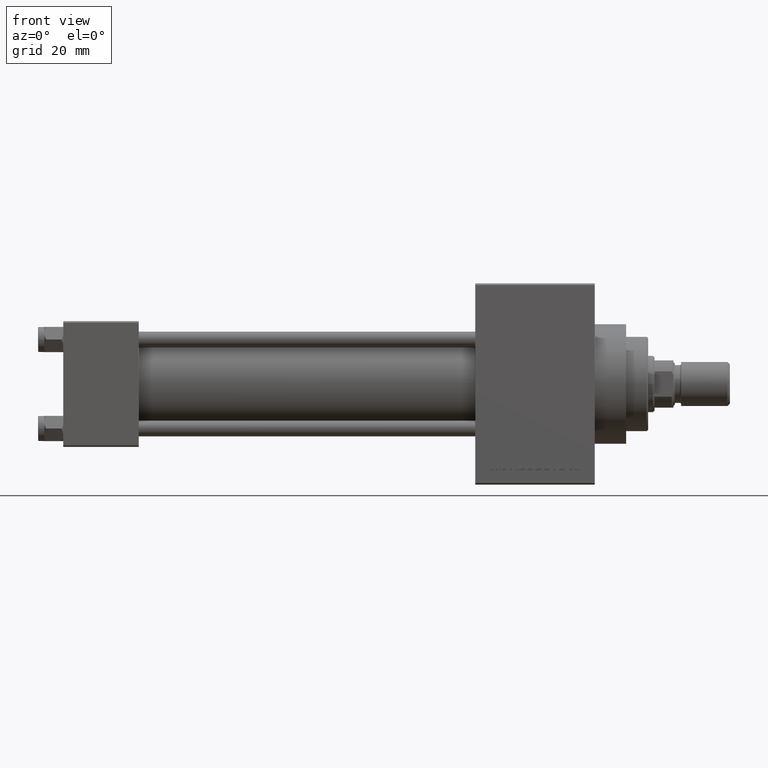
[diagram: clean part render]
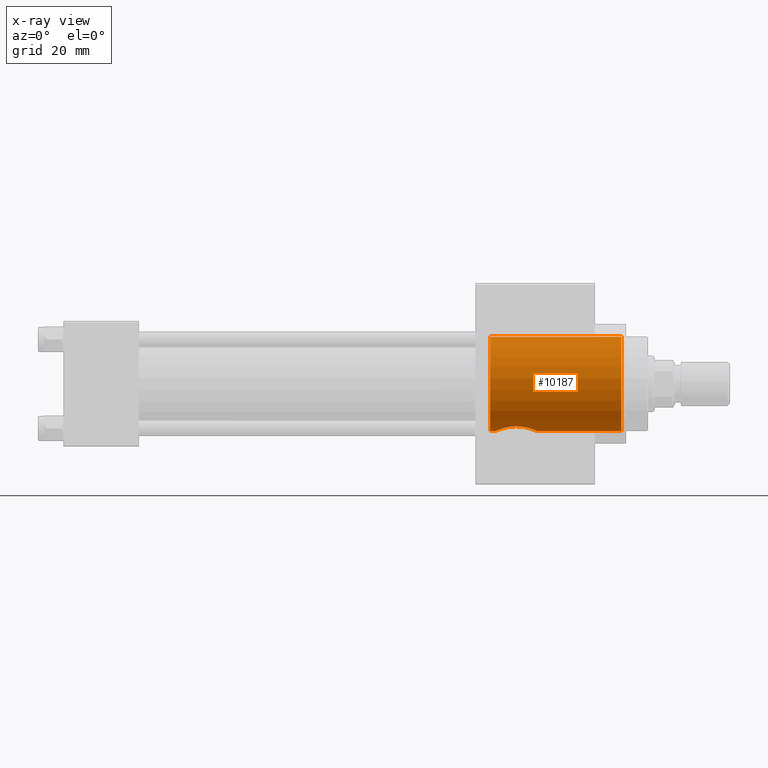
[diagram: x-ray — body ghosted, one internal face saturated and labeled with its STEP entity id]
A machine part, front view, then the same camera in x-ray: the body is ghosted and one INTERNAL B-rep face — a face not visible from any outside direction — is saturated and labeled: STEP entity #10187.
In plain terms, the highlighted cylindrical surface (partial cylindrical patch) has radius 15 mm, axis along (1, 0, 0).
Its self-contained STEP definition (entity closure, byte-faithful):
#220 = CARTESIAN_POINT ( 'NONE',  ( 148.9437061587972266, -4.347595077437862443, -14.35715008390740266 ) ) ;
#318 = CARTESIAN_POINT ( 'NONE',  ( 135.7400000000000375, 0.000000000000000000, -15.00000000000000000 ) ) ;
#692 = CARTESIAN_POINT ( 'NONE',  ( 148.0189860575794683, -5.227305174359007545, -14.06200234790978421 ) ) ;
#928 = CARTESIAN_POINT ( 'NONE',  ( 138.1070580712365370, -2.935225572046712195, -14.71127556900971811 ) ) ;
#1560 = EDGE_CURVE ( 'NONE', #10055, #13906, #46841, .T. ) ;
#3829 = CARTESIAN_POINT ( 'NONE',  ( 148.7990117092313653, -4.506815016703084709, -14.30782100257159328 ) ) ;
#4304 = CARTESIAN_POINT ( 'NONE',  ( 137.4648657042213529, -0.8805243766858766863, -14.98017372138866321 ) ) ;
#4533 = CARTESIAN_POINT ( 'NONE',  ( 138.4206920616049388, -3.494683954914244328, -14.58835908827093775 ) ) ;
#4767 = CARTESIAN_POINT ( 'NONE',  ( 149.8934836668074695, -2.934172982067080770, -14.71149136710529781 ) ) ;
#5035 = ORIENTED_EDGE ( 'NONE', *, *, #20524, .F. ) ;
#7138 = CARTESIAN_POINT ( 'NONE',  ( 135.7400000000000375, 0.000000000000000000, 0.000000000000000000 ) ) ;
#7444 = CARTESIAN_POINT ( 'NONE',  ( 146.1389497965093085, -6.237391210727566637, -13.64285741058751000 ) ) ;
#7568 = VERTEX_POINT ( 'NONE', #46850 ) ;
#7679 = CARTESIAN_POINT ( 'NONE',  ( 144.4372230276197229, -6.569102466734814350, -13.48508356155434029 ) ) ;
#7919 = CARTESIAN_POINT ( 'NONE',  ( 142.2759116826974832, -6.365206900525163469, -13.58282947431845500 ) ) ;
#8630 = CARTESIAN_POINT ( 'NONE',  ( 137.4200000000000159, 0.000000000000000000, -15.00000000000000000 ) ) ;
#8656 = ORIENTED_EDGE ( 'NONE', *, *, #12791, .T. ) ;
#9033 = CARTESIAN_POINT ( 'NONE',  ( 135.7400000000000375, 1.836970198721029589E-15, 15.00000000000000000 ) ) ;
#9054 = EDGE_CURVE ( 'NONE', #10125, #13906, #39612, .T. ) ;
#9741 = DIRECTION ( 'NONE',  ( 1.000000000000000000, -0.000000000000000000, -0.000000000000000000 ) ) ;
#9855 = CARTESIAN_POINT ( 'NONE',  ( 150.5800000000000125, 7.343386259844805303E-21, -15.00000000000000000 ) ) ;
#10055 = VERTEX_POINT ( 'NONE', #33654 ) ;
#10125 = VERTEX_POINT ( 'NONE', #44714 ) ;
#10187 = ADVANCED_FACE ( 'NONE', ( #18430 ), #36239, .F. ) ;
#10377 = AXIS2_PLACEMENT_3D ( 'NONE', #33944, #15415, #11100 ) ;
#10738 = ORIENTED_EDGE ( 'NONE', *, *, #1560, .F. ) ;
#10952 = CARTESIAN_POINT ( 'NONE',  ( 135.7400000000000375, 0.000000000000000000, -15.00000000000000000 ) ) ;
#11100 = DIRECTION ( 'NONE',  ( 0.000000000000000000, 0.000000000000000000, -1.000000000000000000 ) ) ;
#11518 = CARTESIAN_POINT ( 'NONE',  ( 149.9873116215155449, -2.737739955950561299, -14.74943118176231494 ) ) ;
#11996 = CARTESIAN_POINT ( 'NONE',  ( 137.6362535870324564, -1.728014766500466592, -14.90620316739570939 ) ) ;
#12791 = EDGE_CURVE ( 'NONE', #7568, #43780, #29618, .T. ) ;
#12880 = LINE ( 'NONE', #9033, #27112 ) ;
#13906 = VERTEX_POINT ( 'NONE', #8630 ) ;
#14645 = CARTESIAN_POINT ( 'NONE',  ( 141.0705943742913746, -5.907585361799359447, -13.78887769018724896 ) ) ;
#15357 = CARTESIAN_POINT ( 'NONE',  ( 150.2374588801659456, -2.139483301269047288, -14.85215042380712092 ) ) ;
#15415 = DIRECTION ( 'NONE',  ( 1.000000000000000000, 0.000000000000000000, 0.000000000000000000 ) ) ;
#15588 = CARTESIAN_POINT ( 'NONE',  ( 149.6896142827502274, -3.312221329130022873, -14.63101292460512859 ) ) ;
#18067 = VERTEX_POINT ( 'NONE', #30789 ) ;
#18249 = ORIENTED_EDGE ( 'NONE', *, *, #31930, .T. ) ;
#18430 = FACE_OUTER_BOUND ( 'NONE', #46750, .T. ) ;
#18486 = CARTESIAN_POINT ( 'NONE',  ( 139.0476263716007281, -4.353539547500782092, -14.35784693034589310 ) ) ;
#18728 = CARTESIAN_POINT ( 'NONE',  ( 139.9806200292473477, -5.227063243574806783, -14.06210010887748574 ) ) ;
#18966 = CARTESIAN_POINT ( 'NONE',  ( 149.5791903802710863, -3.494899028998896817, -14.58831223514585318 ) ) ;
#20524 = EDGE_CURVE ( 'NONE', #10125, #43780, #29180, .T. ) ;
#21140 = CARTESIAN_POINT ( 'NONE',  ( 150.5800000000000409, -0.2169316461638564342, -15.00000000000000000 ) ) ;
#21636 = VECTOR ( 'NONE', #28106, 1000.000000000000000 ) ;
#22103 = CARTESIAN_POINT ( 'NONE',  ( 141.8636428790546802, -6.238345964970665847, -13.64242472521743110 ) ) ;
#22187 = CARTESIAN_POINT ( 'NONE',  ( 135.7400000000000375, 0.000000000000000000, 0.000000000000000000 ) ) ;
#22335 = CARTESIAN_POINT ( 'NONE',  ( 149.2146596379365349, -4.018599059668316542, -14.45268843803246206 ) ) ;
#22574 = CARTESIAN_POINT ( 'NONE',  ( 140.6876178641565502, -5.701379665288317966, -13.87656728217249125 ) ) ;
#24945 = DIRECTION ( 'NONE',  ( 0.000000000000000000, 0.000000000000000000, -1.000000000000000000 ) ) ;
#25303 = VECTOR ( 'NONE', #43846, 1000.000000000000000 ) ;
#25720 = CARTESIAN_POINT ( 'NONE',  ( 138.3105094269598965, -3.312402565187733128, -14.63096604029539449 ) ) ;
#25962 = CARTESIAN_POINT ( 'NONE',  ( 145.7289618843938968, -6.363607446194719408, -13.58357725995888643 ) ) ;
#26046 = DIRECTION ( 'NONE',  ( 0.000000000000000000, 0.000000000000000000, -1.000000000000000000 ) ) ;
#26195 = CARTESIAN_POINT ( 'NONE',  ( 150.4930741586604199, -1.087954086145058508, -14.96202221307932767 ) ) ;
#27112 = VECTOR ( 'NONE', #9741, 1000.000000000000000 ) ;
#28106 = DIRECTION ( 'NONE',  ( 1.000000000000000000, -0.000000000000000000, -0.000000000000000000 ) ) ;
#28872 = CIRCLE ( 'NONE', #33491, 15.00000000000000000 ) ;
#29180 = LINE ( 'NONE', #318, #25303 ) ;
#29320 = CARTESIAN_POINT ( 'NONE',  ( 146.9301300350283555, -5.907156111486604466, -13.78905776751299328 ) ) ;
#29560 = CARTESIAN_POINT ( 'NONE',  ( 139.6528485656796477, -4.957982004203291382, -14.16049044040822658 ) ) ;
#29618 = CIRCLE ( 'NONE', #10377, 15.00000000000000000 ) ;
#30032 = CARTESIAN_POINT ( 'NONE',  ( 148.3460843867603955, -4.958823491881413581, -14.16017525746068095 ) ) ;
#30268 = CARTESIAN_POINT ( 'NONE',  ( 149.3417132546429968, -3.848088360131228569, -14.49915132225420855 ) ) ;
#30789 = CARTESIAN_POINT ( 'NONE',  ( 135.7400000000000375, 1.836970198721029589E-15, 15.00000000000000000 ) ) ;
#31930 = EDGE_CURVE ( 'NONE', #18067, #7568, #12880, .T. ) ;
#33419 = CARTESIAN_POINT ( 'NONE',  ( 137.4200000000000159, -0.4403606452338927890, -15.00000000000000000 ) ) ;
#33491 = AXIS2_PLACEMENT_3D ( 'NONE', #22187, #44080, #26046 ) ;
#33650 = CARTESIAN_POINT ( 'NONE',  ( 144.2198824759412332, -6.579903666791471650, -13.47979479617858978 ) ) ;
#33654 = CARTESIAN_POINT ( 'NONE',  ( 135.7400000000000375, 0.000000000000000000, -15.00000000000000000 ) ) ;
#33877 = CARTESIAN_POINT ( 'NONE',  ( 138.0133274336805300, -2.739174705121723896, -14.74917075335449290 ) ) ;
#33944 = CARTESIAN_POINT ( 'NONE',  ( 177.4999999999999716, 0.000000000000000000, 0.000000000000000000 ) ) ;
#35829 = CARTESIAN_POINT ( 'NONE',  ( 150.5692996823796648, -0.4343095273374462106, -14.99529651058791835 ) ) ;
#36239 = CYLINDRICAL_SURFACE ( 'NONE', #38714, 15.00000000000000000 ) ;
#36782 = CARTESIAN_POINT ( 'NONE',  ( 150.5259065783089625, -0.8699806972760342205, -14.97633719546783837 ) ) ;
#37024 = CARTESIAN_POINT ( 'NONE',  ( 137.4200000000000159, 0.000000000000000000, -15.00000000000000000 ) ) ;
#37259 = CARTESIAN_POINT ( 'NONE',  ( 138.7760979405067303, -4.023384065375202212, -14.45491362806344782 ) ) ;
#37484 = CARTESIAN_POINT ( 'NONE',  ( 143.1350046215166856, -6.537593013300424083, -13.50070342639052434 ) ) ;
#37715 = CARTESIAN_POINT ( 'NONE',  ( 150.3641253325308753, -1.727232828987601110, -14.90636367285540231 ) ) ;
#38714 = AXIS2_PLACEMENT_3D ( 'NONE', #7138, #47295, #24945 ) ;
#39612 = B_SPLINE_CURVE_WITH_KNOTS ( 'NONE', 3,
 ( #9855, #21140, #35829, #36782, #26195, #37715, #15357, #11518, #4767, #15588, #18966, #30268, #22335, #220, #3829, #30032, #692, #40872, #29320, #7444, #25962, #41102, #40637, #7679, #33650, #44711, #37484, #7919, #22103, #14645, #22574, #18728, #29560, #18486, #37259, #4533, #25720, #928, #33877, #44941, #11996, #4304, #33419, #37024 ),
 .UNSPECIFIED., .F., .F.,
 ( 4, 2, 2, 2, 2, 2, 2, 2, 2, 2, 2, 2, 2, 2, 2, 2, 2, 2, 2, 2, 2, 4 ),
 ( 0.02084072481815275185, 0.02149133227047383965, 0.02214193972279492398, 0.02344315462743709957, 0.02409376207975818390, 0.02474436953207927170, 0.02539497698440035950, 0.02604558443672144730, 0.02734679934136356738, 0.02864801424600568747, 0.02994922915064780408, 0.03059983660296890229, 0.03125044405529000396, 0.03255165895993212405, 0.03385287386457423719, 0.03515408876921635728, 0.03645530367385847736, 0.03775651857850059745, 0.03840712603082165055, 0.03905773348314271060, 0.04035894838778482374, 0.04166016329242694383 ),
 .UNSPECIFIED. ) ;
#40637 = CARTESIAN_POINT ( 'NONE',  ( 144.8726397794943352, -6.525547563966284770, -13.50621393548088278 ) ) ;
#40872 = CARTESIAN_POINT ( 'NONE',  ( 147.3132530144320356, -5.700817728997733091, -13.87679021385153888 ) ) ;
#41102 = CARTESIAN_POINT ( 'NONE',  ( 145.0907739839685746, -6.492589186729399664, -13.52215047168899176 ) ) ;
#42855 = ORIENTED_EDGE ( 'NONE', *, *, #9054, .T. ) ;
#43780 = VERTEX_POINT ( 'NONE', #46587 ) ;
#43846 = DIRECTION ( 'NONE',  ( 1.000000000000000000, -0.000000000000000000, -0.000000000000000000 ) ) ;
#44080 = DIRECTION ( 'NONE',  ( 1.000000000000000000, 0.000000000000000000, 0.000000000000000000 ) ) ;
#44711 = CARTESIAN_POINT ( 'NONE',  ( 143.5689408311527018, -6.580190746694159820, -13.47965466109860522 ) ) ;
#44714 = CARTESIAN_POINT ( 'NONE',  ( 150.5800000000000125, 7.343386259844805303E-21, -15.00000000000000000 ) ) ;
#44941 = CARTESIAN_POINT ( 'NONE',  ( 137.7625296978261247, -2.139642529840412255, -14.85215114896302424 ) ) ;
#45621 = EDGE_CURVE ( 'NONE', #18067, #10055, #28872, .T. ) ;
#46557 = ORIENTED_EDGE ( 'NONE', *, *, #45621, .F. ) ;
#46587 = CARTESIAN_POINT ( 'NONE',  ( 177.4999999999999716, 0.000000000000000000, -15.00000000000000000 ) ) ;
#46750 = EDGE_LOOP ( 'NONE', ( #46557, #18249, #8656, #5035, #42855, #10738 ) ) ;
#46841 = LINE ( 'NONE', #10952, #21636 ) ;
#46850 = CARTESIAN_POINT ( 'NONE',  ( 177.4999999999999716, 1.836970198721029589E-15, 15.00000000000000000 ) ) ;
#47295 = DIRECTION ( 'NONE',  ( 1.000000000000000000, -0.000000000000000000, -0.000000000000000000 ) ) ;